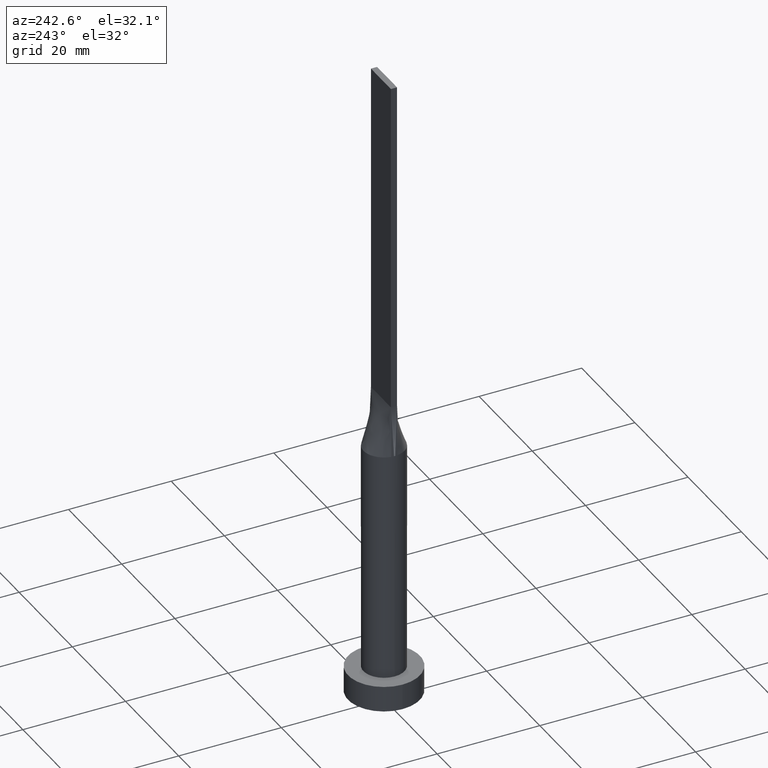
[diagram: clean part render]
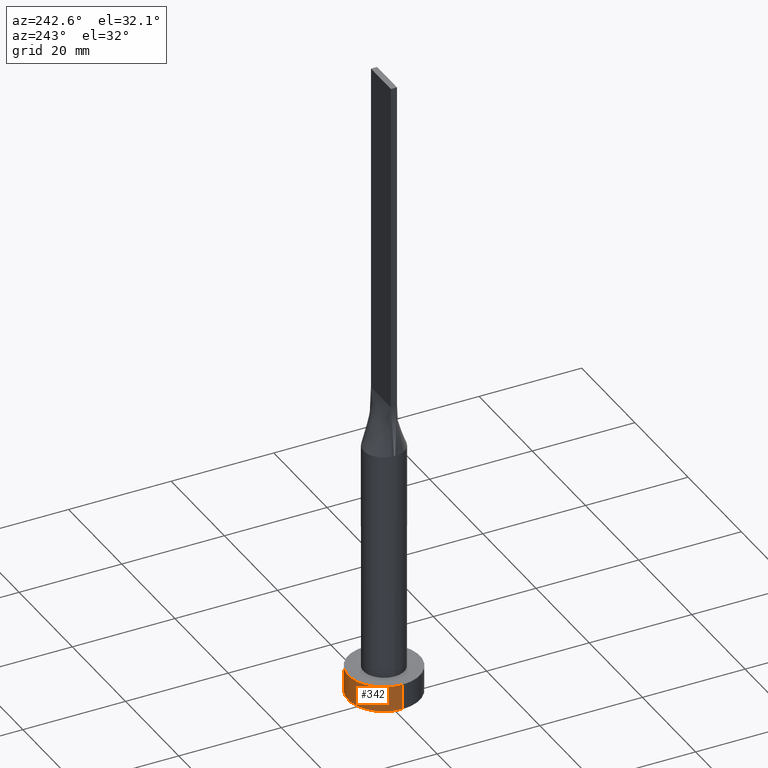
[diagram: same view with one face highlighted and labeled with its STEP entity id]
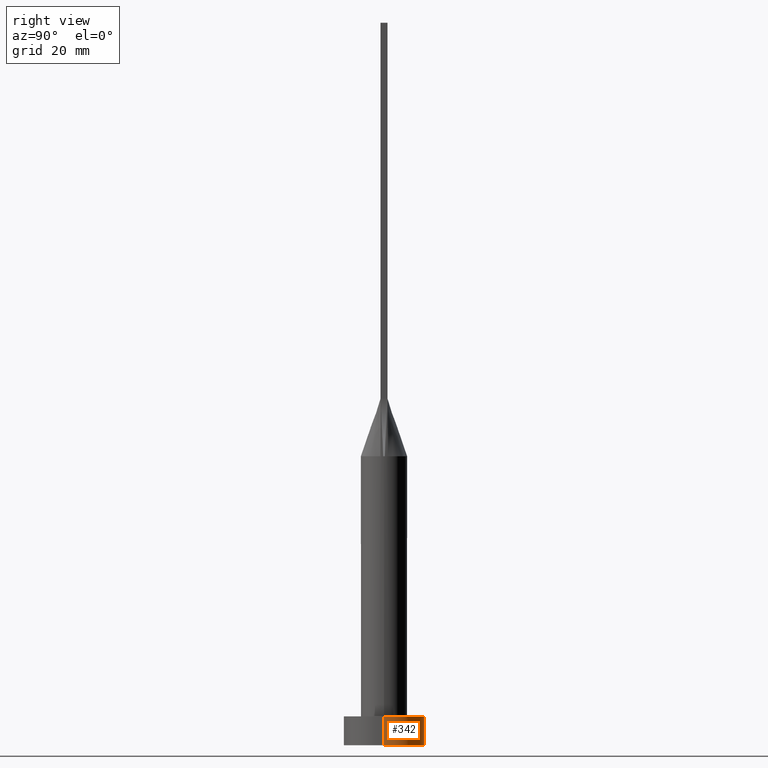
[diagram: same view with one face highlighted and labeled with its STEP entity id]
A machine part, auxiliary view. The second image highlights one B-rep face of the part: STEP entity #342.
A second angle (right view) of the same face is appended — the face is thin or edge-on in the first view.
In plain terms, the highlighted cylindrical surface (partial cylindrical patch) has radius 7 mm, axis along (-0, -0, -1).
Its self-contained STEP definition (entity closure, byte-faithful):
#5 = ORIENTED_EDGE ( 'NONE', *, *, #118, .F. ) ;
#17 = CARTESIAN_POINT ( 'NONE',  ( -7.000000000000000000, 0.000000000000000000, 5.000000000000000000 ) ) ;
#40 = VERTEX_POINT ( 'NONE', #316 ) ;
#41 = VECTOR ( 'NONE', #550, 1000.000000000000000 ) ;
#61 = VECTOR ( 'NONE', #147, 1000.000000000000000 ) ;
#88 = CIRCLE ( 'NONE', #509, 7.000000000000000000 ) ;
#118 = EDGE_CURVE ( 'NONE', #40, #249, #458, .T. ) ;
#147 = DIRECTION ( 'NONE',  ( -0.000000000000000000, -0.000000000000000000, -1.000000000000000000 ) ) ;
#164 = CARTESIAN_POINT ( 'NONE',  ( 0.000000000000000000, 0.000000000000000000, 5.000000000000000000 ) ) ;
#170 = DIRECTION ( 'NONE',  ( 1.000000000000000000, 0.000000000000000000, 0.000000000000000000 ) ) ;
#176 = EDGE_CURVE ( 'NONE', #383, #454, #233, .T. ) ;
#233 = LINE ( 'NONE', #328, #41 ) ;
#248 = FACE_OUTER_BOUND ( 'NONE', #345, .T. ) ;
#249 = VERTEX_POINT ( 'NONE', #388 ) ;
#256 = CARTESIAN_POINT ( 'NONE',  ( 0.000000000000000000, 0.000000000000000000, 5.000000000000000000 ) ) ;
#283 = CARTESIAN_POINT ( 'NONE',  ( 0.000000000000000000, 0.000000000000000000, 0.000000000000000000 ) ) ;
#293 = CYLINDRICAL_SURFACE ( 'NONE', #546, 7.000000000000000000 ) ;
#312 = CARTESIAN_POINT ( 'NONE',  ( 7.000000000000000000, 8.572527594031473190E-16, 0.000000000000000000 ) ) ;
#316 = CARTESIAN_POINT ( 'NONE',  ( -7.000000000000000000, 0.000000000000000000, 5.000000000000000000 ) ) ;
#321 = EDGE_CURVE ( 'NONE', #383, #40, #357, .T. ) ;
#328 = CARTESIAN_POINT ( 'NONE',  ( 7.000000000000000000, 8.572527594031473190E-16, 5.000000000000000000 ) ) ;
#342 = ADVANCED_FACE ( 'NONE', ( #248 ), #293, .T. ) ;
#345 = EDGE_LOOP ( 'NONE', ( #470, #426, #473, #5 ) ) ;
#357 = CIRCLE ( 'NONE', #492, 7.000000000000000000 ) ;
#367 = DIRECTION ( 'NONE',  ( 0.000000000000000000, 0.000000000000000000, 1.000000000000000000 ) ) ;
#383 = VERTEX_POINT ( 'NONE', #563 ) ;
#388 = CARTESIAN_POINT ( 'NONE',  ( -7.000000000000000000, 0.000000000000000000, 0.000000000000000000 ) ) ;
#426 = ORIENTED_EDGE ( 'NONE', *, *, #176, .T. ) ;
#428 = DIRECTION ( 'NONE',  ( -1.000000000000000000, 0.000000000000000000, 0.000000000000000000 ) ) ;
#454 = VERTEX_POINT ( 'NONE', #312 ) ;
#458 = LINE ( 'NONE', #17, #61 ) ;
#470 = ORIENTED_EDGE ( 'NONE', *, *, #321, .F. ) ;
#473 = ORIENTED_EDGE ( 'NONE', *, *, #529, .T. ) ;
#492 = AXIS2_PLACEMENT_3D ( 'NONE', #164, #516, #170 ) ;
#509 = AXIS2_PLACEMENT_3D ( 'NONE', #283, #367, #547 ) ;
#516 = DIRECTION ( 'NONE',  ( 0.000000000000000000, 0.000000000000000000, 1.000000000000000000 ) ) ;
#525 = DIRECTION ( 'NONE',  ( -0.000000000000000000, -0.000000000000000000, -1.000000000000000000 ) ) ;
#529 = EDGE_CURVE ( 'NONE', #454, #249, #88, .T. ) ;
#546 = AXIS2_PLACEMENT_3D ( 'NONE', #256, #525, #428 ) ;
#547 = DIRECTION ( 'NONE',  ( 1.000000000000000000, 0.000000000000000000, 0.000000000000000000 ) ) ;
#550 = DIRECTION ( 'NONE',  ( -0.000000000000000000, -0.000000000000000000, -1.000000000000000000 ) ) ;
#563 = CARTESIAN_POINT ( 'NONE',  ( 7.000000000000000000, 8.572527594031473190E-16, 5.000000000000000000 ) ) ;